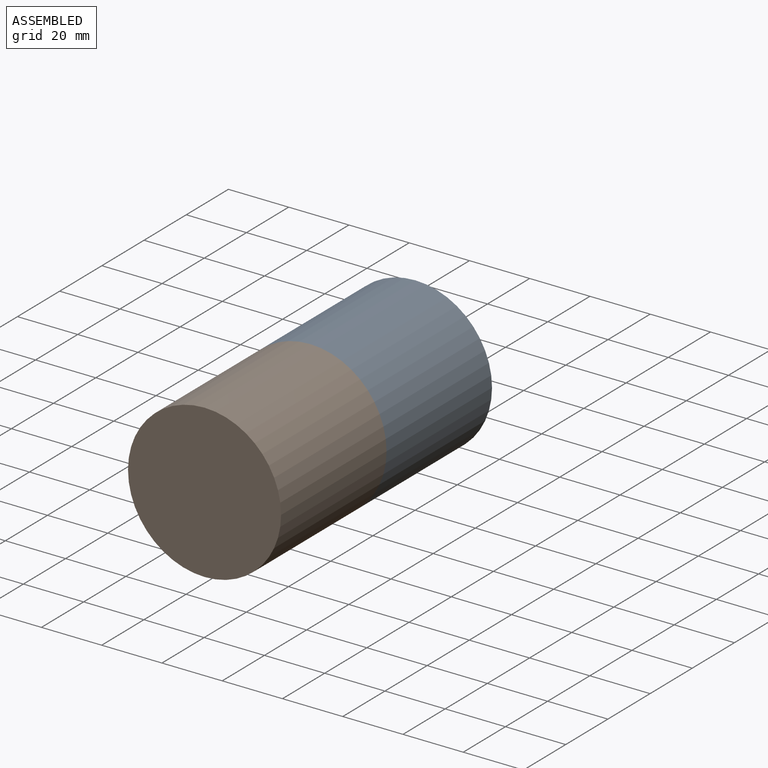
[diagram: assembled view]
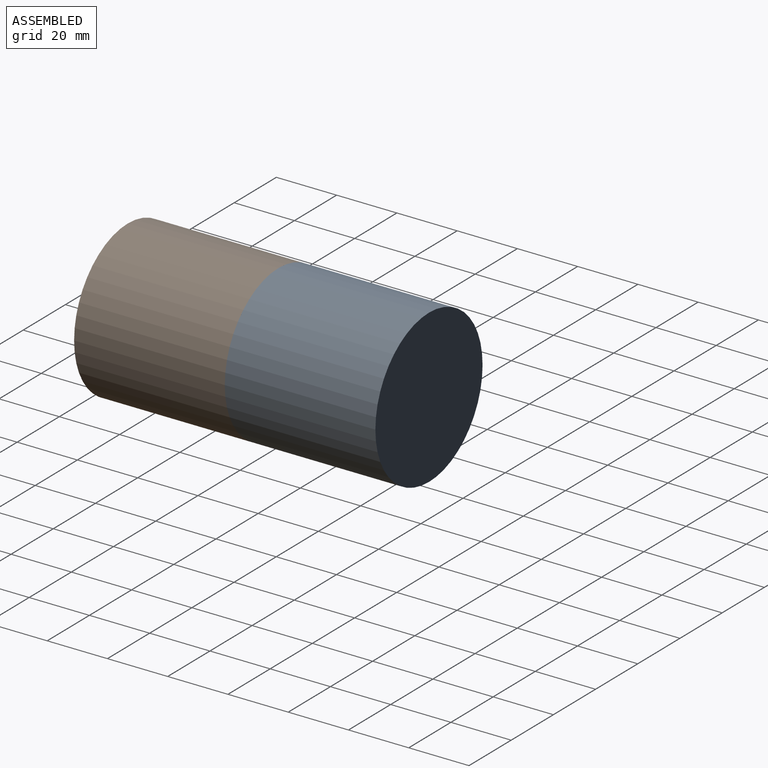
[diagram: assembled view, second angle]
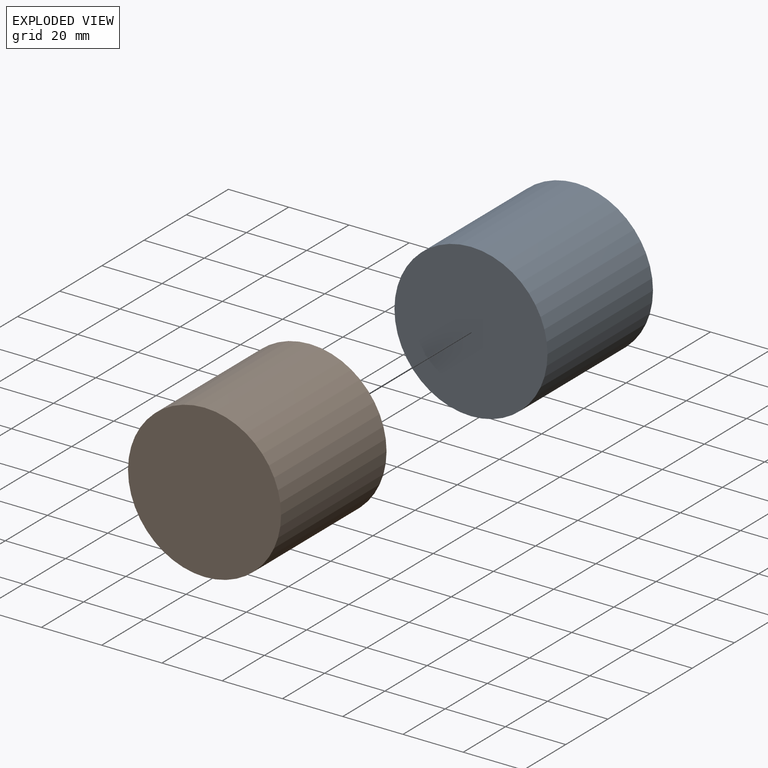
[diagram: exploded view]
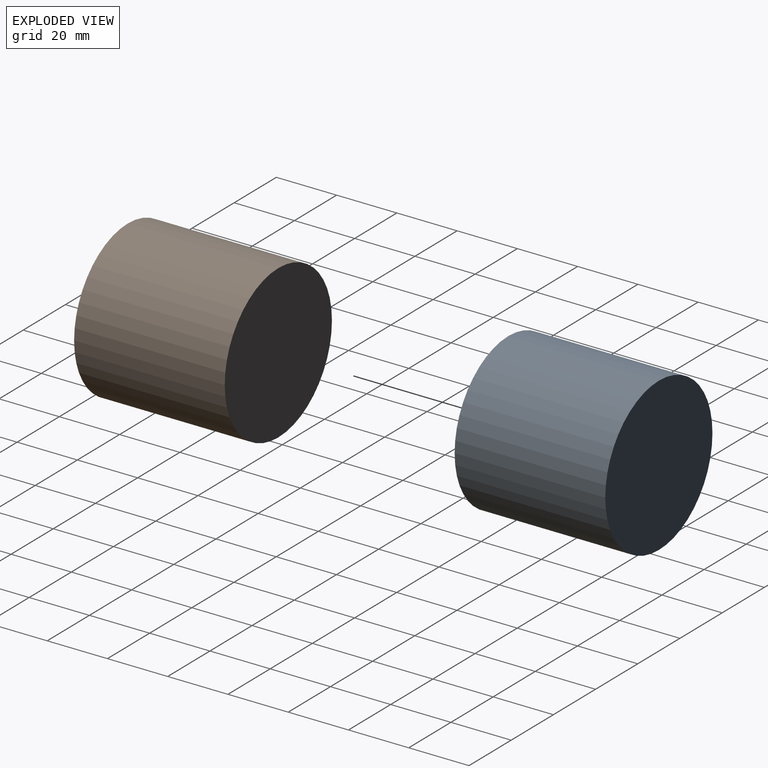
[diagram: exploded view, second angle]
ASSEMBLY  parts=2 mates=2
PART A: 3 faces, bbox 50.8x50x50.8 mm
  f0: cylinder r=25.4mm len=50.8mm, axis (0,1,0), area 7979.6mm2, adj f1,f2
  f1: plane 50.8x50.8mm, normal (0,-1,0), area 2026.8mm2, adj f0
  f2: plane 50.8x50.8mm, normal (0,1,0), area 2026.8mm2, adj f0
PART B: same geometry as A
PLACE A t=(0.03,-11.28,24.49)mm
PLACE B t=(0.03,-61.28,24.49)mm
MATE planar A.f0 <-> B.f0  axis (0,-1,0) through (0.03,-61.28,24.49)mm
MATE cylindrical A.f0 <-> B.f0  axis (0,1,0) through (0.03,-36.28,24.49)mm
